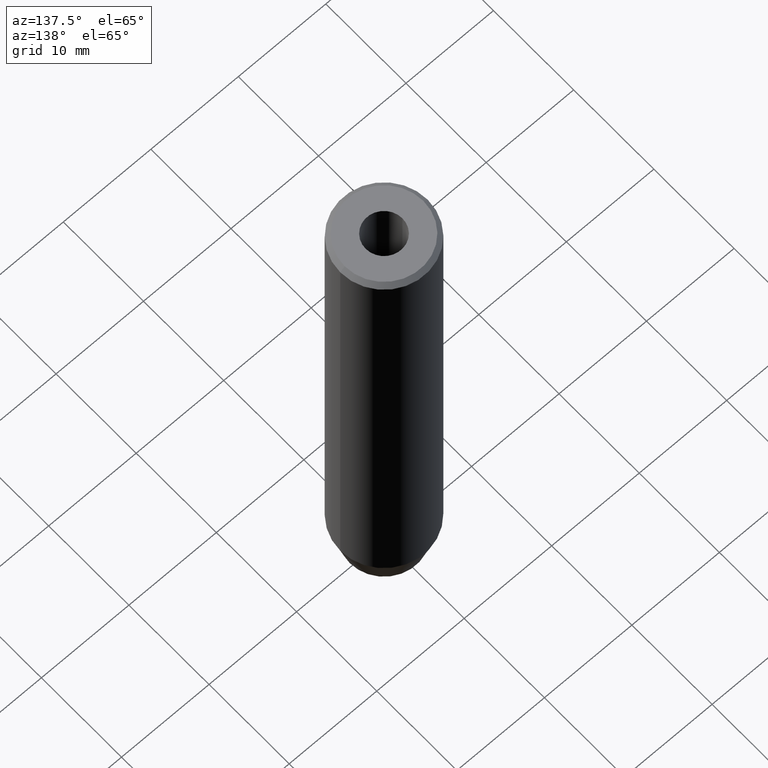
[diagram: clean part render]
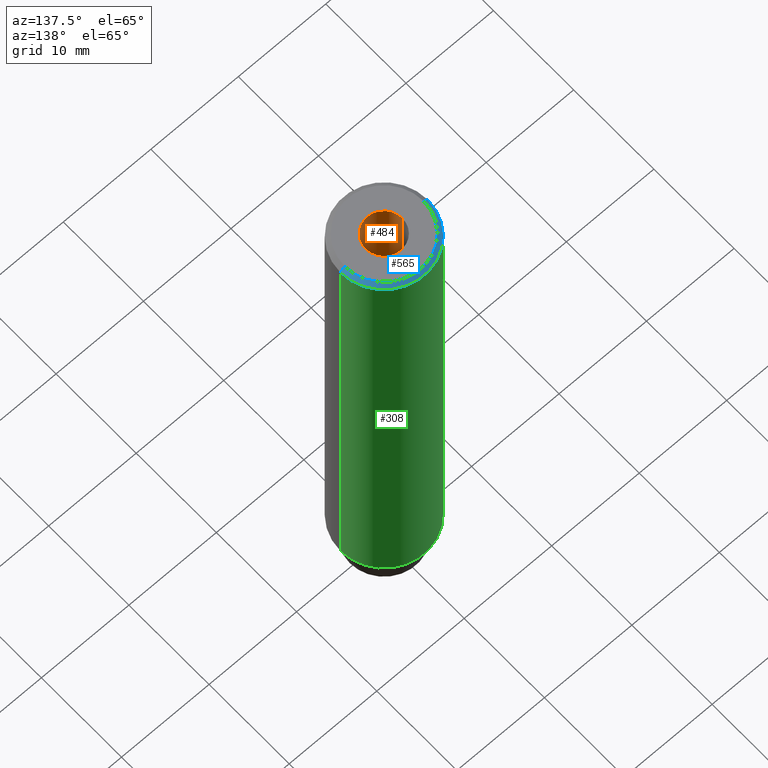
[diagram: same view with three faces highlighted in distinct colors, each labeled with its STEP entity id]
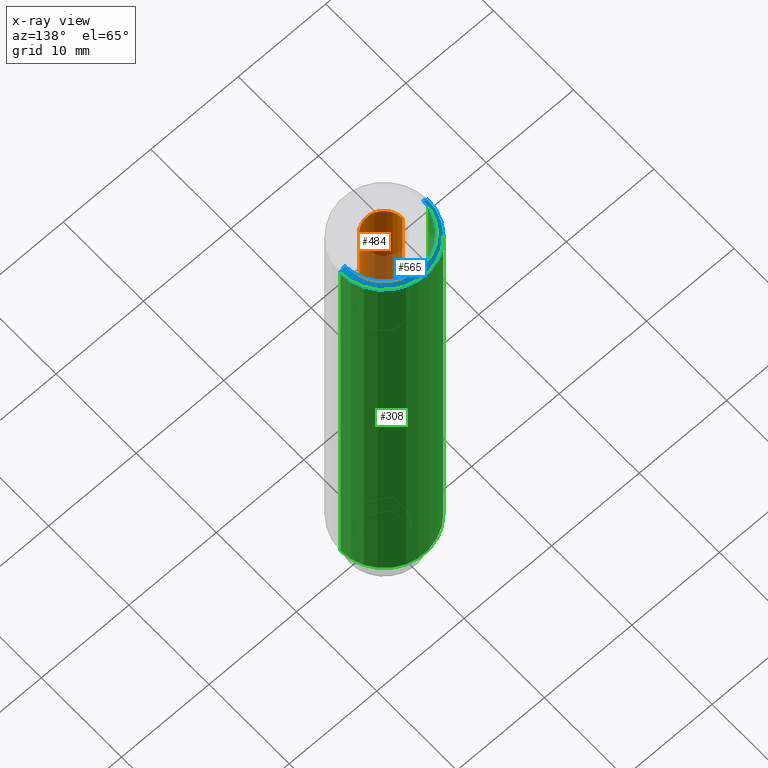
[diagram: x-ray of the same camera — body ghosted, the three highlighted faces saturated]
A machine part, auxiliary view with three faces highlighted in distinct colors.
The next image is the same camera in x-ray (body ghosted, the three faces saturated) — at least one of them is partly hidden behind the body in this view.
Their STEP definitions:

[orange] entity #484 — the highlighted cylindrical surface (edge-blend (fillet) strip) has radius 2.1 mm, axis along (-0, -0, 1).
#15 = DIRECTION ( 'NONE',  ( 1.000000000000000000, 0.000000000000000000, 0.000000000000000000 ) ) ;
#20 = VECTOR ( 'NONE', #581, 1000.000000000000000 ) ;
#35 = AXIS2_PLACEMENT_3D ( 'NONE', #53, #102, #15 ) ;
#41 = DIRECTION ( 'NONE',  ( -0.000000000000000000, -0.000000000000000000, 1.000000000000000000 ) ) ;
#53 = CARTESIAN_POINT ( 'NONE',  ( 0.000000000000000000, 0.000000000000000000, -15.00000000000000000 ) ) ;
#95 = LINE ( 'NONE', #350, #409 ) ;
#97 = AXIS2_PLACEMENT_3D ( 'NONE', #236, #41, #226 ) ;
#102 = DIRECTION ( 'NONE',  ( -0.000000000000000000, -0.000000000000000000, 1.000000000000000000 ) ) ;
#104 = VERTEX_POINT ( 'NONE', #285 ) ;
#122 = ORIENTED_EDGE ( 'NONE', *, *, #571, .T. ) ;
#136 = VERTEX_POINT ( 'NONE', #169 ) ;
#149 = ORIENTED_EDGE ( 'NONE', *, *, #328, .F. ) ;
#150 = CYLINDRICAL_SURFACE ( 'NONE', #397, 2.099999999999997868 ) ;
#164 = CARTESIAN_POINT ( 'NONE',  ( 0.000000000000000000, 0.000000000000000000, 0.000000000000000000 ) ) ;
#169 = CARTESIAN_POINT ( 'NONE',  ( 2.099999999999998757, 0.000000000000000000, -1.990051048614449116E-16 ) ) ;
#171 = CIRCLE ( 'NONE', #97, 2.099999999999998757 ) ;
#224 = DIRECTION ( 'NONE',  ( -0.000000000000000000, -0.000000000000000000, 1.000000000000000000 ) ) ;
#226 = DIRECTION ( 'NONE',  ( 1.000000000000000000, 0.000000000000000000, 0.000000000000000000 ) ) ;
#233 = CIRCLE ( 'NONE', #35, 2.099999999999996980 ) ;
#236 = CARTESIAN_POINT ( 'NONE',  ( 0.000000000000000000, 0.000000000000000000, -1.990051048614449116E-16 ) ) ;
#253 = ORIENTED_EDGE ( 'NONE', *, *, #411, .F. ) ;
#260 = CARTESIAN_POINT ( 'NONE',  ( -2.099999999999996980, 2.571758278209438013E-16, -15.00000000000000000 ) ) ;
#272 = VERTEX_POINT ( 'NONE', #260 ) ;
#273 = CARTESIAN_POINT ( 'NONE',  ( 2.099999999999996980, 0.000000000000000000, -15.00000000000000000 ) ) ;
#283 = FACE_OUTER_BOUND ( 'NONE', #429, .T. ) ;
#285 = CARTESIAN_POINT ( 'NONE',  ( -2.099999999999998757, 2.571758278209439985E-16, -1.990051048614449116E-16 ) ) ;
#328 = EDGE_CURVE ( 'NONE', #356, #136, #95, .T. ) ;
#343 = EDGE_CURVE ( 'NONE', #104, #136, #171, .T. ) ;
#349 = CARTESIAN_POINT ( 'NONE',  ( -2.099999999999997868, 2.571758278209438999E-16, 0.000000000000000000 ) ) ;
#350 = CARTESIAN_POINT ( 'NONE',  ( 2.099999999999997868, 0.000000000000000000, 0.000000000000000000 ) ) ;
#356 = VERTEX_POINT ( 'NONE', #273 ) ;
#366 = DIRECTION ( 'NONE',  ( 1.000000000000000000, 0.000000000000000000, 0.000000000000000000 ) ) ;
#397 = AXIS2_PLACEMENT_3D ( 'NONE', #164, #553, #366 ) ;
#409 = VECTOR ( 'NONE', #224, 1000.000000000000000 ) ;
#411 = EDGE_CURVE ( 'NONE', #272, #356, #233, .T. ) ;
#429 = EDGE_LOOP ( 'NONE', ( #253, #122, #522, #149 ) ) ;
#440 = LINE ( 'NONE', #349, #20 ) ;
#484 = ADVANCED_FACE ( 'NONE', ( #283 ), #150, .F. ) ;
#522 = ORIENTED_EDGE ( 'NONE', *, *, #343, .T. ) ;
#553 = DIRECTION ( 'NONE',  ( -0.000000000000000000, -0.000000000000000000, 1.000000000000000000 ) ) ;
#571 = EDGE_CURVE ( 'NONE', #272, #104, #440, .T. ) ;
#581 = DIRECTION ( 'NONE',  ( -0.000000000000000000, -0.000000000000000000, 1.000000000000000000 ) ) ;

[blue] entity #565 — the highlighted conical surface has half-angle 45 deg.
#9 = ORIENTED_EDGE ( 'NONE', *, *, #219, .F. ) ;
#10 = FACE_OUTER_BOUND ( 'NONE', #507, .T. ) ;
#50 = EDGE_CURVE ( 'NONE', #519, #537, #125, .T. ) ;
#87 = DIRECTION ( 'NONE',  ( -0.000000000000000000, -0.000000000000000000, 1.000000000000000000 ) ) ;
#90 = DIRECTION ( 'NONE',  ( 0.7071067811865500152, 8.659560562354963673E-17, -0.7071067811865451302 ) ) ;
#125 = CIRCLE ( 'NONE', #198, 4.499999999999990230 ) ;
#156 = DIRECTION ( 'NONE',  ( -1.000000000000000000, 0.000000000000000000, 0.000000000000000000 ) ) ;
#159 = ORIENTED_EDGE ( 'NONE', *, *, #579, .F. ) ;
#168 = DIRECTION ( 'NONE',  ( 0.000000000000000000, 0.000000000000000000, -1.000000000000000000 ) ) ;
#179 = CARTESIAN_POINT ( 'NONE',  ( 4.499999999999990230, 5.510910596163077723E-16, 0.000000000000000000 ) ) ;
#187 = VERTEX_POINT ( 'NONE', #256 ) ;
#198 = AXIS2_PLACEMENT_3D ( 'NONE', #323, #87, #267 ) ;
#202 = CARTESIAN_POINT ( 'NONE',  ( 4.499999999999990230, 5.817072295949921509E-16, 0.000000000000000000 ) ) ;
#208 = CARTESIAN_POINT ( 'NONE',  ( -4.499999999999990230, 0.000000000000000000, 0.000000000000000000 ) ) ;
#214 = VERTEX_POINT ( 'NONE', #303 ) ;
#219 = EDGE_CURVE ( 'NONE', #537, #187, #486, .T. ) ;
#251 = ORIENTED_EDGE ( 'NONE', *, *, #299, .T. ) ;
#256 = CARTESIAN_POINT ( 'NONE',  ( -5.000000000000000000, 6.123233995736766282E-16, -0.5000000000000065503 ) ) ;
#267 = DIRECTION ( 'NONE',  ( 1.000000000000000000, 0.000000000000000000, 0.000000000000000000 ) ) ;
#286 = VECTOR ( 'NONE', #90, 1000.000000000000114 ) ;
#299 = EDGE_CURVE ( 'NONE', #519, #214, #496, .T. ) ;
#303 = CARTESIAN_POINT ( 'NONE',  ( 5.000000000000000000, 0.000000000000000000, -0.5000000000000065503 ) ) ;
#323 = CARTESIAN_POINT ( 'NONE',  ( 0.000000000000000000, 0.000000000000000000, 0.000000000000000000 ) ) ;
#332 = VECTOR ( 'NONE', #575, 1000.000000000000114 ) ;
#341 = ORIENTED_EDGE ( 'NONE', *, *, #50, .F. ) ;
#344 = CIRCLE ( 'NONE', #378, 5.000000000000000000 ) ;
#375 = CARTESIAN_POINT ( 'NONE',  ( 0.000000000000000000, 0.000000000000000000, 0.000000000000000000 ) ) ;
#378 = AXIS2_PLACEMENT_3D ( 'NONE', #494, #168, #569 ) ;
#389 = AXIS2_PLACEMENT_3D ( 'NONE', #375, #558, #156 ) ;
#451 = CONICAL_SURFACE ( 'NONE', #389, 4.499999999999990230, 0.7853981633974517207 ) ;
#486 = LINE ( 'NONE', #489, #332 ) ;
#489 = CARTESIAN_POINT ( 'NONE',  ( -4.499999999999990230, 0.000000000000000000, 0.000000000000000000 ) ) ;
#494 = CARTESIAN_POINT ( 'NONE',  ( 0.000000000000000000, 0.000000000000000000, -0.5000000000000065503 ) ) ;
#496 = LINE ( 'NONE', #179, #286 ) ;
#507 = EDGE_LOOP ( 'NONE', ( #341, #251, #159, #9 ) ) ;
#519 = VERTEX_POINT ( 'NONE', #202 ) ;
#537 = VERTEX_POINT ( 'NONE', #208 ) ;
#558 = DIRECTION ( 'NONE',  ( 0.000000000000000000, 0.000000000000000000, -1.000000000000000000 ) ) ;
#565 = ADVANCED_FACE ( 'NONE', ( #10 ), #451, .T. ) ;
#569 = DIRECTION ( 'NONE',  ( 1.000000000000000000, 0.000000000000000000, 0.000000000000000000 ) ) ;
#575 = DIRECTION ( 'NONE',  ( -0.7071067811865500152, 0.000000000000000000, -0.7071067811865451302 ) ) ;
#579 = EDGE_CURVE ( 'NONE', #187, #214, #344, .T. ) ;

[green] entity #308 — the highlighted cylindrical surface (partial cylindrical patch) has radius 5 mm, axis along (-0, -0, 1).
#6 = CYLINDRICAL_SURFACE ( 'NONE', #217, 5.000000000000000000 ) ;
#42 = EDGE_CURVE ( 'NONE', #545, #187, #548, .T. ) ;
#52 = ORIENTED_EDGE ( 'NONE', *, *, #73, .T. ) ;
#58 = CIRCLE ( 'NONE', #442, 5.000000000000000000 ) ;
#61 = EDGE_LOOP ( 'NONE', ( #52, #363, #228, #152 ) ) ;
#73 = EDGE_CURVE ( 'NONE', #510, #545, #58, .T. ) ;
#75 = CARTESIAN_POINT ( 'NONE',  ( 5.000000000000000000, 0.000000000000000000, 0.000000000000000000 ) ) ;
#78 = VECTOR ( 'NONE', #83, 1000.000000000000000 ) ;
#83 = DIRECTION ( 'NONE',  ( -0.000000000000000000, -0.000000000000000000, 1.000000000000000000 ) ) ;
#88 = LINE ( 'NONE', #75, #78 ) ;
#139 = DIRECTION ( 'NONE',  ( 1.000000000000000000, 0.000000000000000000, 0.000000000000000000 ) ) ;
#142 = CARTESIAN_POINT ( 'NONE',  ( 0.000000000000000000, 0.000000000000000000, 0.000000000000000000 ) ) ;
#143 = CARTESIAN_POINT ( 'NONE',  ( -5.000000000000000000, 6.123233995736766282E-16, 0.000000000000000000 ) ) ;
#152 = ORIENTED_EDGE ( 'NONE', *, *, #585, .F. ) ;
#168 = DIRECTION ( 'NONE',  ( 0.000000000000000000, 0.000000000000000000, -1.000000000000000000 ) ) ;
#187 = VERTEX_POINT ( 'NONE', #256 ) ;
#214 = VERTEX_POINT ( 'NONE', #303 ) ;
#217 = AXIS2_PLACEMENT_3D ( 'NONE', #142, #307, #550 ) ;
#225 = CARTESIAN_POINT ( 'NONE',  ( 0.000000000000000000, 0.000000000000000000, -55.99999999999999289 ) ) ;
#228 = ORIENTED_EDGE ( 'NONE', *, *, #579, .T. ) ;
#255 = CARTESIAN_POINT ( 'NONE',  ( -5.000000000000000000, 6.123233995736766282E-16, -55.99999999999999289 ) ) ;
#256 = CARTESIAN_POINT ( 'NONE',  ( -5.000000000000000000, 6.123233995736766282E-16, -0.5000000000000065503 ) ) ;
#303 = CARTESIAN_POINT ( 'NONE',  ( 5.000000000000000000, 0.000000000000000000, -0.5000000000000065503 ) ) ;
#307 = DIRECTION ( 'NONE',  ( -0.000000000000000000, -0.000000000000000000, 1.000000000000000000 ) ) ;
#308 = ADVANCED_FACE ( 'NONE', ( #314 ), #6, .T. ) ;
#314 = FACE_OUTER_BOUND ( 'NONE', #61, .T. ) ;
#326 = CARTESIAN_POINT ( 'NONE',  ( 5.000000000000000000, 0.000000000000000000, -55.99999999999999289 ) ) ;
#330 = VECTOR ( 'NONE', #401, 1000.000000000000000 ) ;
#344 = CIRCLE ( 'NONE', #378, 5.000000000000000000 ) ;
#363 = ORIENTED_EDGE ( 'NONE', *, *, #42, .T. ) ;
#378 = AXIS2_PLACEMENT_3D ( 'NONE', #494, #168, #569 ) ;
#401 = DIRECTION ( 'NONE',  ( -0.000000000000000000, -0.000000000000000000, 1.000000000000000000 ) ) ;
#442 = AXIS2_PLACEMENT_3D ( 'NONE', #225, #584, #139 ) ;
#494 = CARTESIAN_POINT ( 'NONE',  ( 0.000000000000000000, 0.000000000000000000, -0.5000000000000065503 ) ) ;
#510 = VERTEX_POINT ( 'NONE', #326 ) ;
#545 = VERTEX_POINT ( 'NONE', #255 ) ;
#548 = LINE ( 'NONE', #143, #330 ) ;
#550 = DIRECTION ( 'NONE',  ( 1.000000000000000000, 0.000000000000000000, 0.000000000000000000 ) ) ;
#569 = DIRECTION ( 'NONE',  ( 1.000000000000000000, 0.000000000000000000, 0.000000000000000000 ) ) ;
#579 = EDGE_CURVE ( 'NONE', #187, #214, #344, .T. ) ;
#584 = DIRECTION ( 'NONE',  ( -0.000000000000000000, -0.000000000000000000, 1.000000000000000000 ) ) ;
#585 = EDGE_CURVE ( 'NONE', #510, #214, #88, .T. ) ;